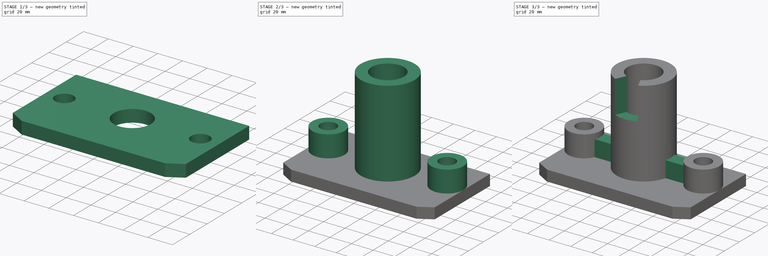
[diagram: build sequence overview — one tinted view per stage of 3, left to right]
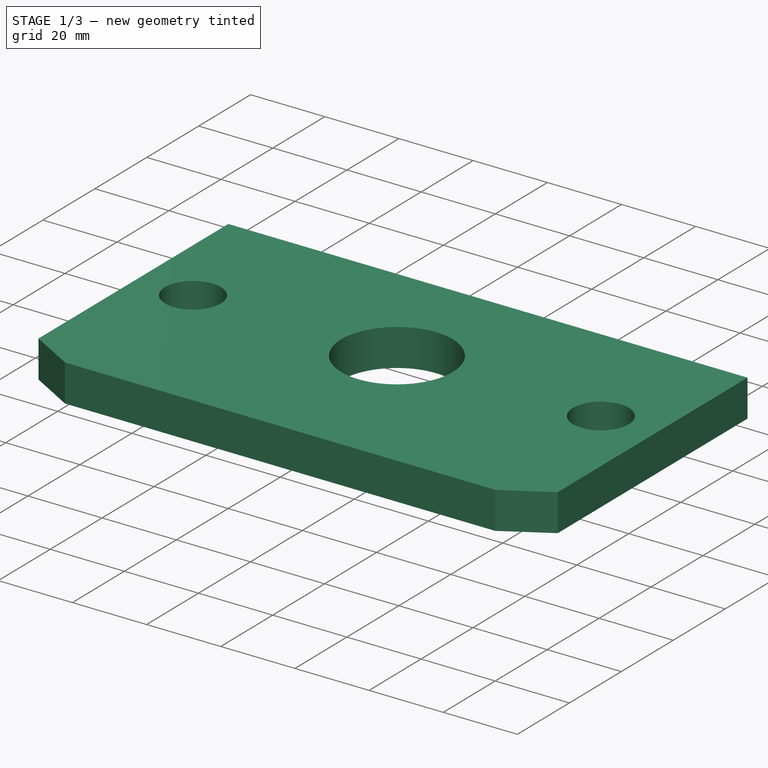
[diagram: stage 1 of 3 — iso view after this stage's code; geometry added in this stage tinted green]
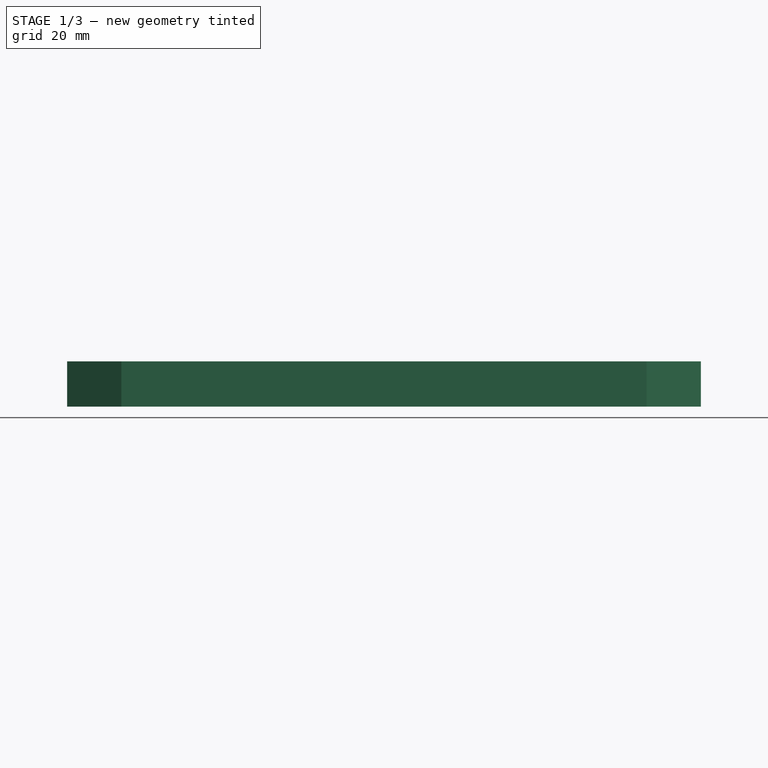
[diagram: stage 1 of 3 — front view after this stage's code; geometry added in this stage tinted green]
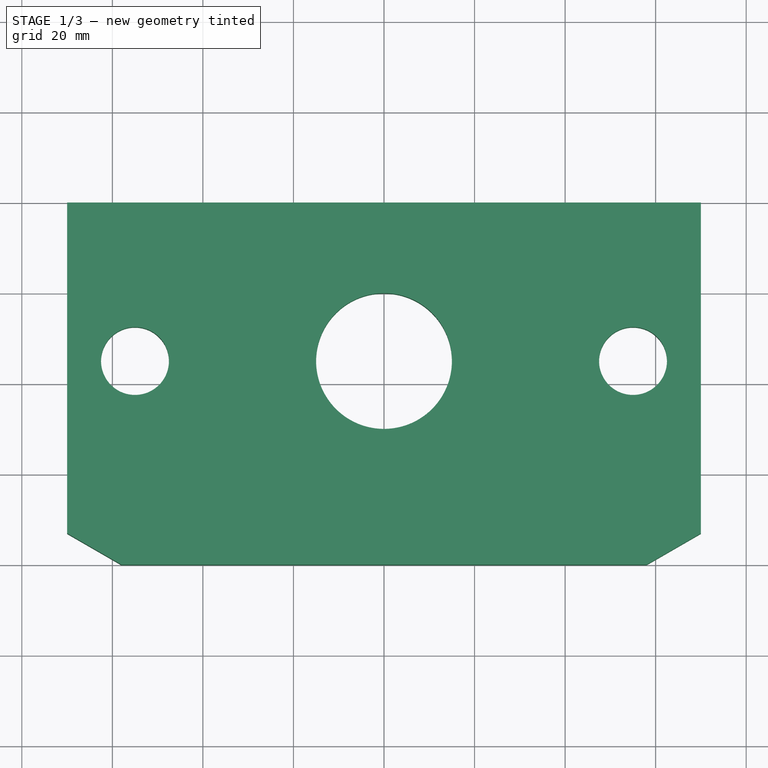
[diagram: stage 1 of 3 — top view after this stage's code; geometry added in this stage tinted green]
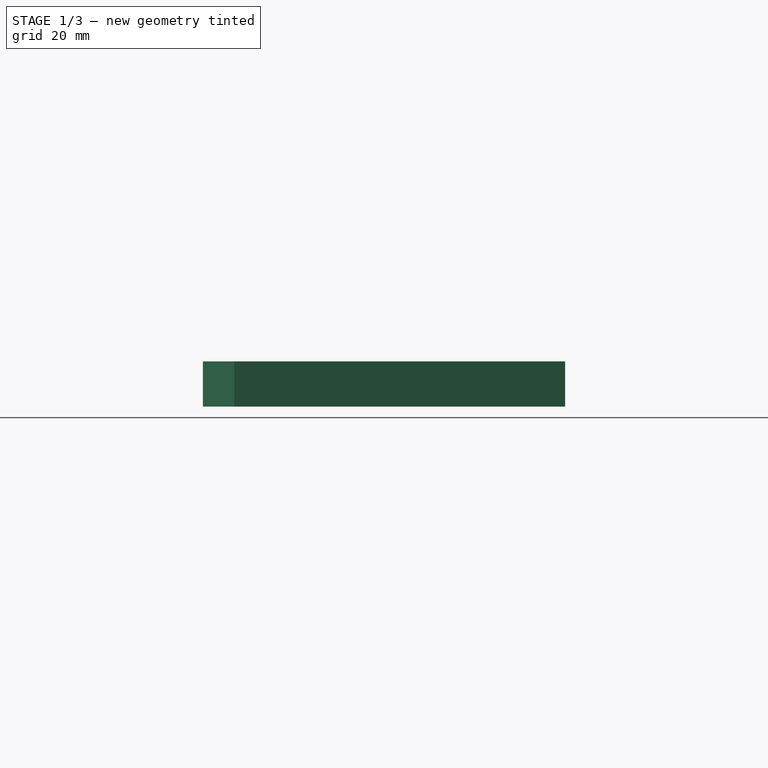
[diagram: stage 1 of 3 — right view after this stage's code; geometry added in this stage tinted green]
FCSTD DOCUMENT  (FreeCAD 1.0R39109 (Git))
Label: 7.2
License: All rights reserved
LicenseURL: https://en.wikipedia.org/wiki/All_rights_reserved
objects: Sketcher::SketchObject×7, PartDesign::Pad×4, PartDesign::Pocket×2, PartDesign::Body×1
note: 33 computed .brp shape members not serialized (recipe doc carries the construction recipe); baked Part::Feature solids carry a one-line shape summary decoded from their .brp

FEATURE [Sketcher::SketchObject] Sketch
  ArcFitTolerance = 1e-06
  AttachmentSupport = -> [XY_Plane]
  FullyConstrained = true
  MakeInternals = false
  MapMode = 5
  sketch-geometry (8):
    g0: LineSegment StartX=-70 StartY=40 StartZ=0 EndX=-70 EndY=-40 EndZ=0
    g1: LineSegment StartX=-70 StartY=-40 StartZ=0 EndX=70 EndY=-40 EndZ=0
    g2: LineSegment StartX=70 StartY=-40 StartZ=0 EndX=70 EndY=40 EndZ=0
    g3: LineSegment StartX=70 StartY=40 StartZ=0 EndX=-70 EndY=40 EndZ=0
    g4: Circle CenterX=-55 CenterY=5 CenterZ=0 NormalX=0 NormalY=0 NormalZ=1 AngleXU=0 Radius=7.5
    g5: Circle CenterX=55 CenterY=5 CenterZ=0 NormalX=0 NormalY=0 NormalZ=1 AngleXU=0 Radius=7.5
    g6: LineSegment [constr] StartX=-70 StartY=5 StartZ=0 EndX=70 EndY=5 EndZ=0
    g7: Circle CenterX=0 CenterY=5 CenterZ=0 NormalX=0 NormalY=0 NormalZ=1 AngleXU=0 Radius=15
  constraints (22):
    c: Coincident(g0,g1)
    c: Coincident(g1,g2)
    c: Coincident(g2,g3)
    c: Coincident(g3,g0)
    c: Vertical(g0)
    c: Vertical(g2)
    c: Horizontal(g1)
    c: Horizontal(g3)
    c: Symmetric(g0,g1,g-1)
    c: DistanceX(g3,g3) = 140
    c: DistanceY(g0,g0) = 80
    c: Diameter(g4) = 15
    c: Equal(g4,g5)
    c: Symmetric(g4,g5,g-2)
    c: PointOnObject(g6,g0)
    c: PointOnObject(g6,g2)
    c: Horizontal(g6)
    c: DistanceY(g6,g0) = 35
    c: Distance(g4,g5) = 110
    c: PointOnObject(g4,g6)
    c: Symmetric(g6,g6,g7)
    c: Diameter(g7) = 30
FEATURE [PartDesign::Pad] Pad
  Direction = (0,0,1)
  Length = 10
  Length2 = 10
  Profile = -> Sketch
  ReferenceAxis = -> Sketch [N_Axis]
  Refine = true
  Suppressed = false
  Type = 0
FEATURE [Sketcher::SketchObject] Sketch001
  ArcFitTolerance = 1e-06
  AttachmentSupport = -> [Pad]
  ExternalGeometry = -> [Pad]
  FullyConstrained = true
  MakeInternals = false
  MapMode = 5
  Placement = pos=(0,0,10) rot=(0,0,1;0rad)
  sketch-geometry (6):
    g0: LineSegment StartX=-70 StartY=-33.0718 StartZ=0 EndX=-58 EndY=-40 EndZ=0
    g1: LineSegment StartX=-58 StartY=-40 StartZ=0 EndX=-70 EndY=-40 EndZ=0
    g2: LineSegment StartX=-70 StartY=-40 StartZ=0 EndX=-70 EndY=-33.0718 EndZ=0
    g3: LineSegment StartX=70 StartY=-33.0718 StartZ=0 EndX=70 EndY=-40 EndZ=0
    g4: LineSegment StartX=70 StartY=-40 StartZ=0 EndX=58 EndY=-40 EndZ=0
    g5: LineSegment StartX=58 StartY=-40 StartZ=0 EndX=70 EndY=-33.0718 EndZ=0
  constraints (16):
    c: Coincident(g0,g1)
    c: Horizontal(g1)
    c: Coincident(g1,g2)
    c: Coincident(g2,g0)
    c: Angle(g0,g1) = 0.523599
    c: DistanceX(g1,g1) = 12
    c: Angle(g1,g2) = 1.5708
    c: Coincident(g1,g-4)
    c: Vertical(g3)
    c: Coincident(g3,g4)
    c: Horizontal(g4)
    c: Coincident(g4,g5)
    c: Coincident(g5,g3)
    c: Angle(g4,g5) = 0.523599
    c: DistanceX(g4,g4) = 12
    c: Coincident(g3,g-4)
FEATURE [PartDesign::Pocket] Pocket
  BaseFeature = -> Pad
  Direction = (0,0,-1)
  Length = 11
  Length2 = 5
  Profile = -> Sketch001
  ReferenceAxis = -> Sketch001 [N_Axis]
  Refine = true
  Suppressed = false
  Type = 0
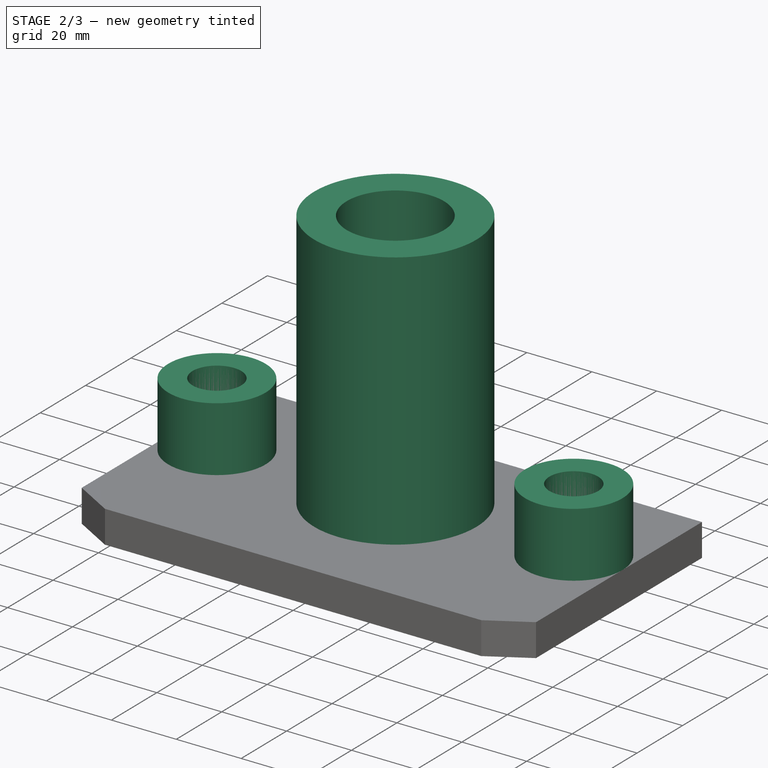
[diagram: stage 2 of 3 — iso view after this stage's code; geometry added in this stage tinted green]
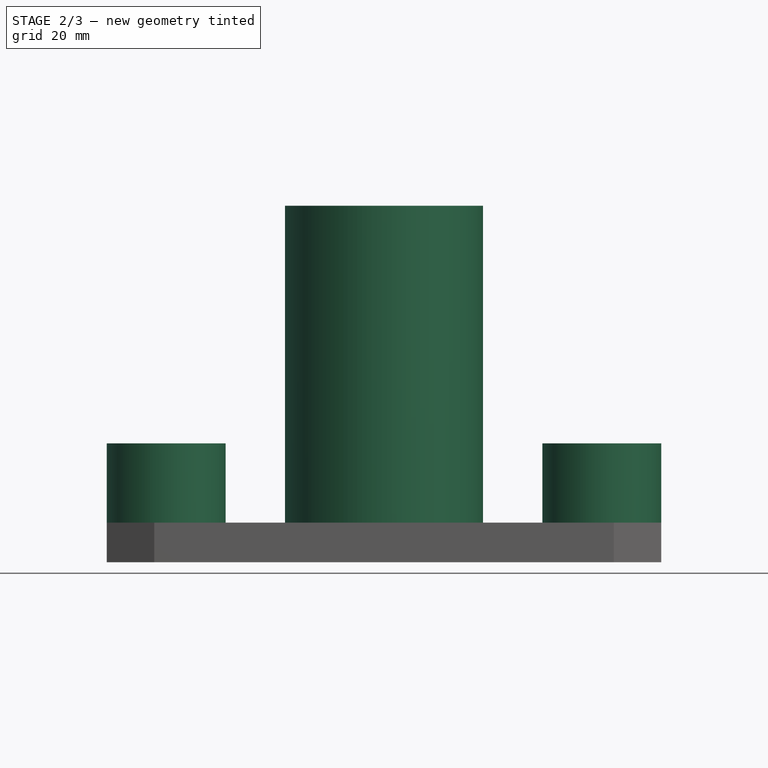
[diagram: stage 2 of 3 — front view after this stage's code; geometry added in this stage tinted green]
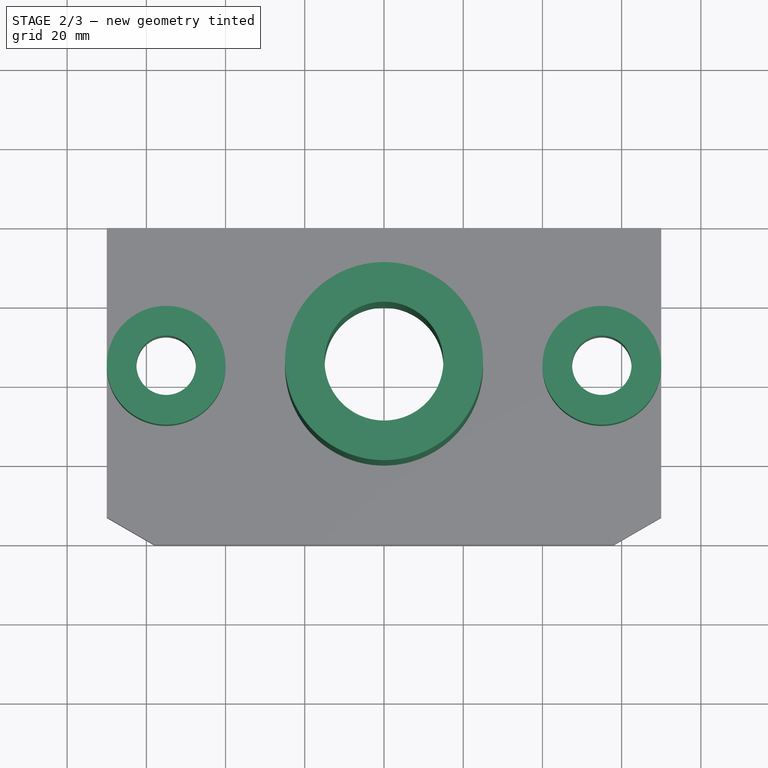
[diagram: stage 2 of 3 — top view after this stage's code; geometry added in this stage tinted green]
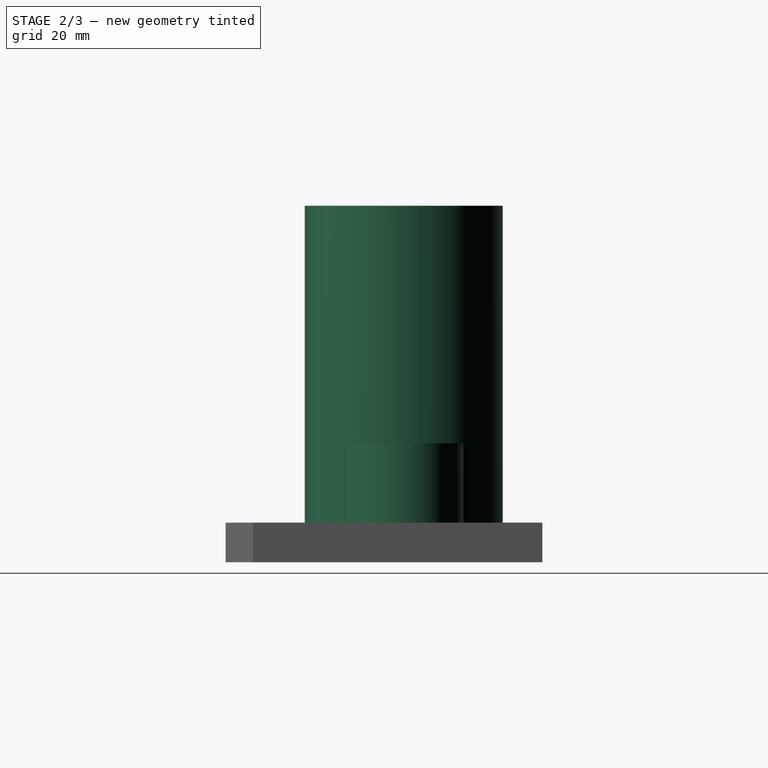
[diagram: stage 2 of 3 — right view after this stage's code; geometry added in this stage tinted green]
FEATURE [Sketcher::SketchObject] Sketch003
  ArcFitTolerance = 1e-06
  FullyConstrained = true
  MakeInternals = false
  MapMode = 5
  Placement = pos=(0,0,25) rot=(0,0,1;0rad)
FEATURE [Sketcher::SketchObject] Sketch004
  ArcFitTolerance = 1e-06
  FullyConstrained = true
  MakeInternals = false
  MapMode = 5
  Placement = pos=(0,0,10) rot=(0,0,1;0rad)
  sketch-geometry (2):
    g0: Circle CenterX=0 CenterY=5 CenterZ=0 NormalX=0 NormalY=0 NormalZ=1 AngleXU=0 Radius=25
    g1: Circle CenterX=0 CenterY=5 CenterZ=0 NormalX=0 NormalY=0 NormalZ=1 AngleXU=0 Radius=15
  constraints (4):
    c: Diameter(g0) = 50
    c: Diameter(g1) = 30
    c: Block(g0)
    c: Block(g1)
FEATURE [PartDesign::Pad] Pad001
  BaseFeature = -> Pocket
  Direction = (0,0,1)
  Length = 80
  Length2 = 10
  Profile = -> Sketch004
  ReferenceAxis = -> Sketch004 [N_Axis]
  Refine = true
  Suppressed = false
  Type = 0
FEATURE [Sketcher::SketchObject] Sketch005
  ArcFitTolerance = 1e-06
  AttachmentSupport = -> [Pad001]
  ExternalGeometry = -> [Pad001]
  FullyConstrained = true
  MakeInternals = false
  MapMode = 5
  Placement = pos=(0,0,10) rot=(0,0,1;0rad)
  sketch-geometry (4):
    g0: Circle CenterX=55 CenterY=5 CenterZ=0 NormalX=0 NormalY=0 NormalZ=1 AngleXU=0 Radius=15
    g1: Circle CenterX=-55 CenterY=5 CenterZ=0 NormalX=0 NormalY=0 NormalZ=1 AngleXU=0 Radius=15
    g2: Circle CenterX=-55 CenterY=5 CenterZ=0 NormalX=0 NormalY=0 NormalZ=1 AngleXU=0 Radius=7.5
    g3: Circle CenterX=55 CenterY=5 CenterZ=0 NormalX=0 NormalY=0 NormalZ=1 AngleXU=0 Radius=7.5
  constraints (10):
    c: Diameter(g0) = 30
    c: Equal(g0,g1)
    c: Symmetric(g0,g1,g-2)
    c: Block(g1)
    c: Block(g0)
    c: Coincident(g2,g1)
    c: Diameter(g3) = 15
    c: Coincident(g3,g0)
    c: Block(g3)
    c: Block(g2)
FEATURE [PartDesign::Pad] Pad002
  BaseFeature = -> Pad001
  Direction = (0,0,1)
  Length = 20
  Length2 = 10
  Profile = -> Sketch005
  ReferenceAxis = -> Sketch005 [N_Axis]
  Refine = true
  Suppressed = false
  Type = 0
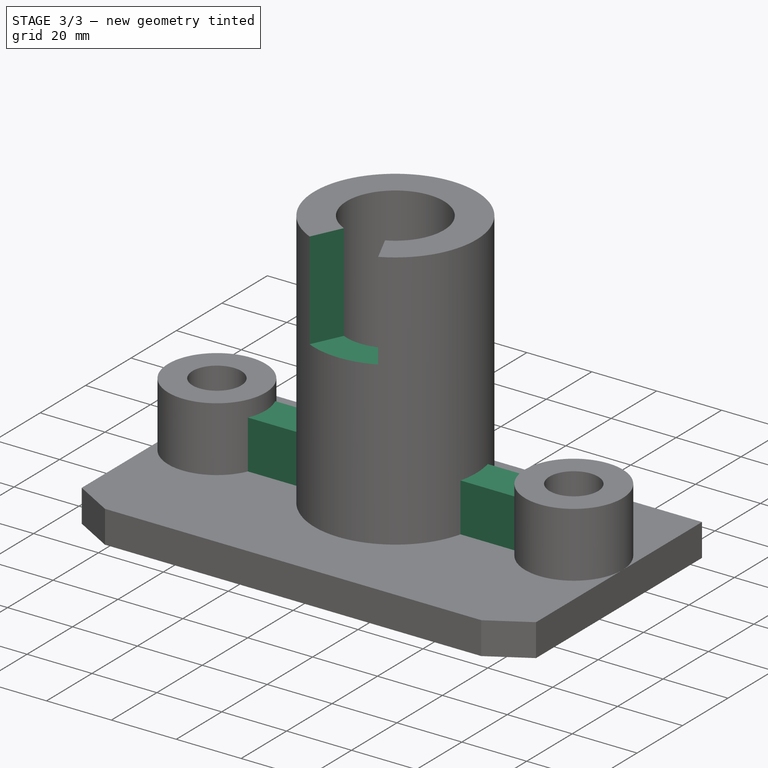
[diagram: stage 3 of 3 — iso view after this stage's code; geometry added in this stage tinted green]
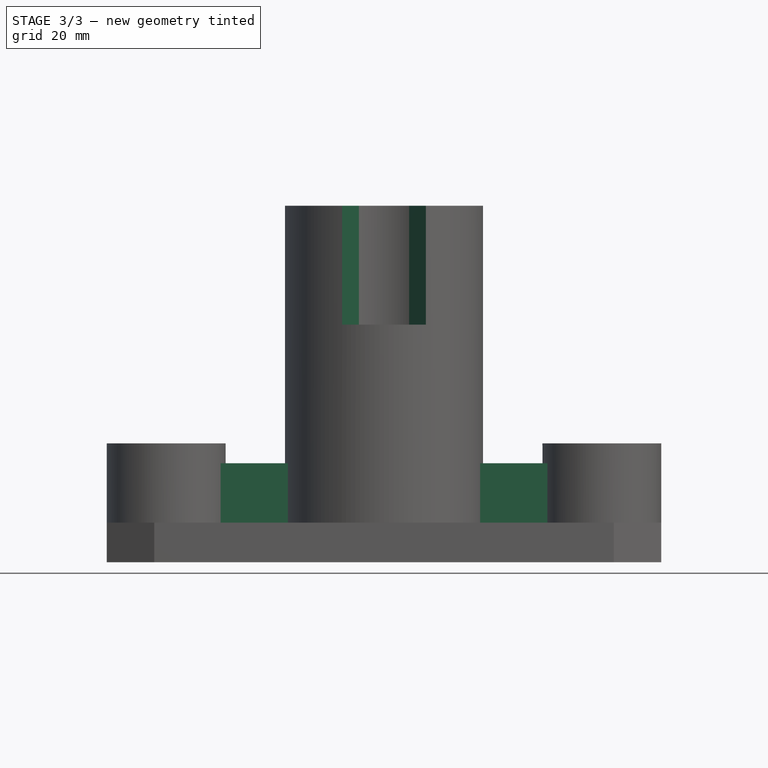
[diagram: stage 3 of 3 — front view after this stage's code; geometry added in this stage tinted green]
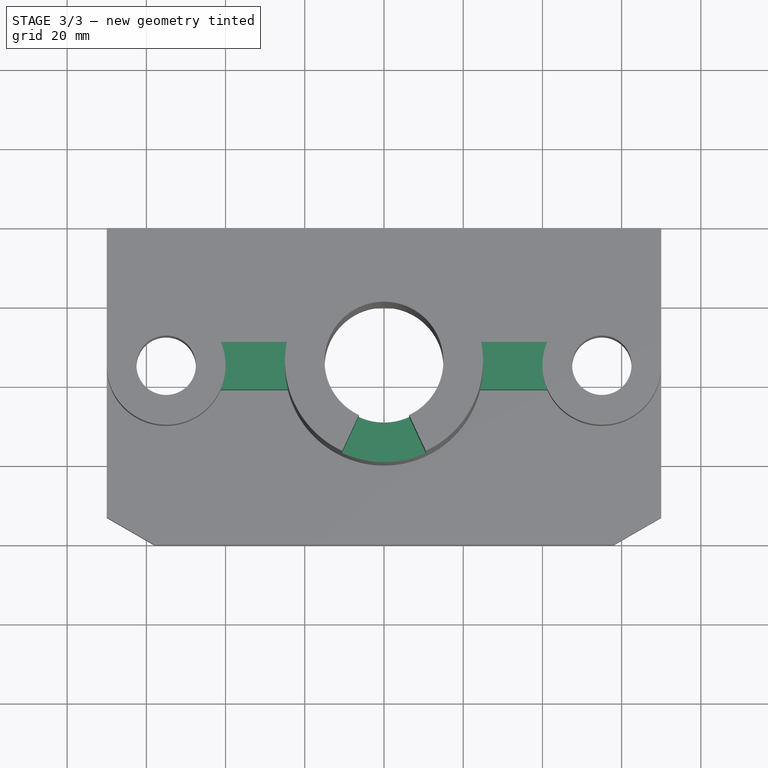
[diagram: stage 3 of 3 — top view after this stage's code; geometry added in this stage tinted green]
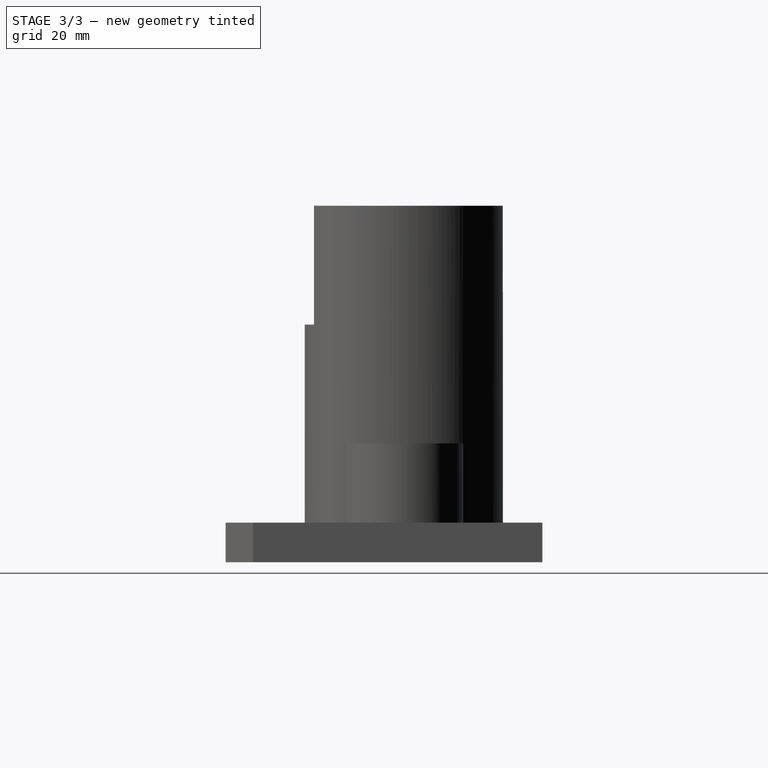
[diagram: stage 3 of 3 — right view after this stage's code; geometry added in this stage tinted green]
FEATURE [Sketcher::SketchObject] Sketch006
  ArcFitTolerance = 1e-06
  AttachmentSupport = -> [Pad002]
  ExternalGeometry = -> [Pad002]
  FullyConstrained = true
  MakeInternals = false
  MapMode = 5
  Placement = pos=(0,0,10) rot=(0,0,1;0rad)
  sketch-geometry (8):
    g0: LineSegment StartX=-46.0148 StartY=11 StartZ=0 EndX=-46.0148 EndY=-1 EndZ=0
    g1: LineSegment StartX=-46.0148 StartY=-1 StartZ=0 EndX=-20.0148 EndY=-1 EndZ=0
    g2: LineSegment StartX=-20.0148 StartY=-1 StartZ=0 EndX=-20.0148 EndY=11 EndZ=0
    g3: LineSegment StartX=-20.0148 StartY=11 StartZ=0 EndX=-46.0148 EndY=11 EndZ=0
    g4: LineSegment StartX=46.0148 StartY=11 StartZ=0 EndX=46.0148 EndY=-1 EndZ=0
    g5: LineSegment StartX=46.0148 StartY=-1 StartZ=0 EndX=20.0148 EndY=-1 EndZ=0
    g6: LineSegment StartX=20.0148 StartY=-1 StartZ=0 EndX=20.0148 EndY=11 EndZ=0
    g7: LineSegment StartX=20.0148 StartY=11 StartZ=0 EndX=46.0148 EndY=11 EndZ=0
  constraints (22):
    c: Coincident(g0,g1)
    c: Coincident(g1,g2)
    c: Coincident(g2,g3)
    c: Coincident(g3,g0)
    c: Vertical(g0)
    c: Vertical(g2)
    c: Horizontal(g1)
    c: Horizontal(g3)
    c: Distance(g0,g2) = 26
    c: Distance(g1,g3) = 12
    c: Block(g1)
    c: Coincident(g4,g5)
    c: Coincident(g5,g6)
    c: Coincident(g6,g7)
    c: Coincident(g7,g4)
    c: Vertical(g4)
    c: Vertical(g6)
    c: Horizontal(g5)
    c: Horizontal(g7)
    c: Distance(g4,g6) = 26
    c: Distance(g5,g7) = 12
    c: Block(g5)
FEATURE [PartDesign::Pad] Pad003
  BaseFeature = -> Pad002
  Direction = (0,0,1)
  Length = 15
  Length2 = 10
  Profile = -> Sketch006
  ReferenceAxis = -> Sketch006 [N_Axis]
  Refine = true
  Suppressed = false
  Type = 0
FEATURE [Sketcher::SketchObject] Sketch007
  ArcFitTolerance = 1e-06
  AttachmentSupport = -> [Pad003]
  ExternalGeometry = -> [Pad003]
  FullyConstrained = true
  MakeInternals = false
  MapMode = 5
  Placement = pos=(0,0,90) rot=(0,0,1;0rad)
  sketch-geometry (3):
    g0: ArcOfCircle CenterX=1e-16 CenterY=5 CenterZ=0 NormalX=0 NormalY=0 NormalZ=1 AngleXU=0 Radius=25 StartAngle=4.27606 EndAngle=5.14872
    g1: LineSegment StartX=1e-16 StartY=5 StartZ=0 EndX=-10.5654 EndY=-17.6577 EndZ=0
    g2: LineSegment StartX=10.5655 StartY=-17.6577 StartZ=0 EndX=1e-16 EndY=5 EndZ=0
  constraints (7):
    c: Coincident(g1,g0)
    c: Coincident(g1,g0)
    c: Coincident(g2,g0)
    c: Coincident(g2,g0)
    c: Block(g1)
    c: Block(g2)
    c: Block(g0)
FEATURE [PartDesign::Pocket] Pocket001
  BaseFeature = -> Pad003
  Direction = (0,0,-1)
  Length = 30
  Length2 = 5
  Profile = -> Sketch007
  ReferenceAxis = -> Sketch007 [N_Axis]
  Refine = true
  Suppressed = false
  Type = 0
FEATURE [PartDesign::Body] Body  label="Тело"
  AllowCompound = false
  Group = -> [Sketch,Pad,Sketch001,Pocket,Sketch003,Sketch004,Pad001,Sketch005,Pad002,Sketch006,Pad003,Sketch007,Pocket001]
  Origin = -> Origin
  Tip = -> Pocket001
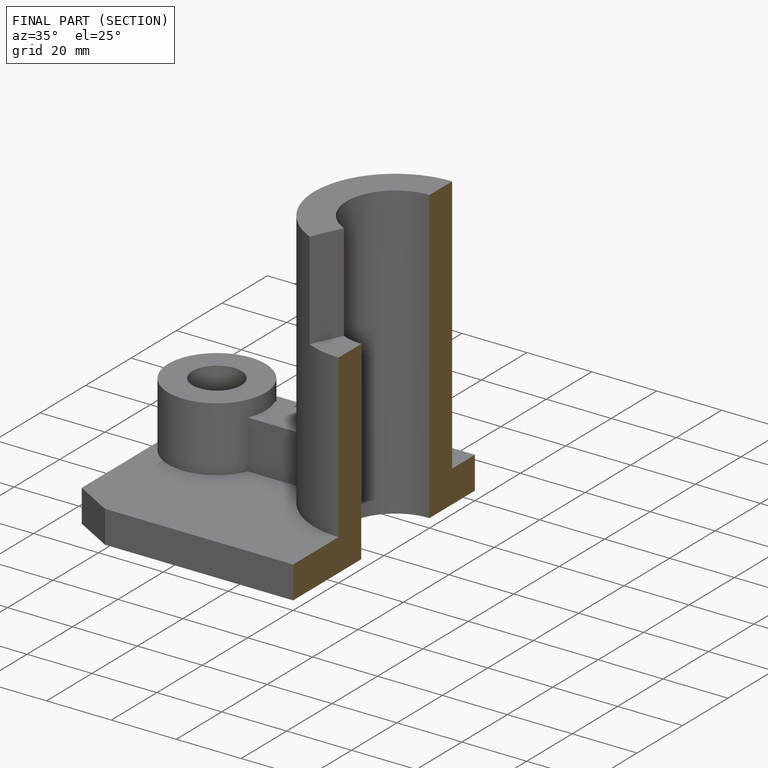
[diagram: finished part — half-section view (interior)]
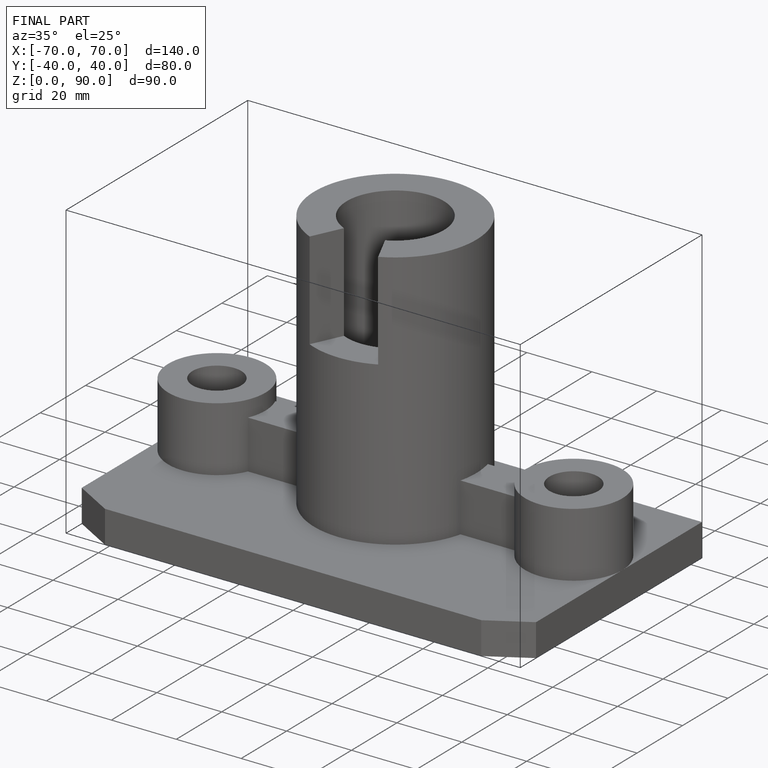
[diagram: finished part — iso view with bounding-box wireframe]
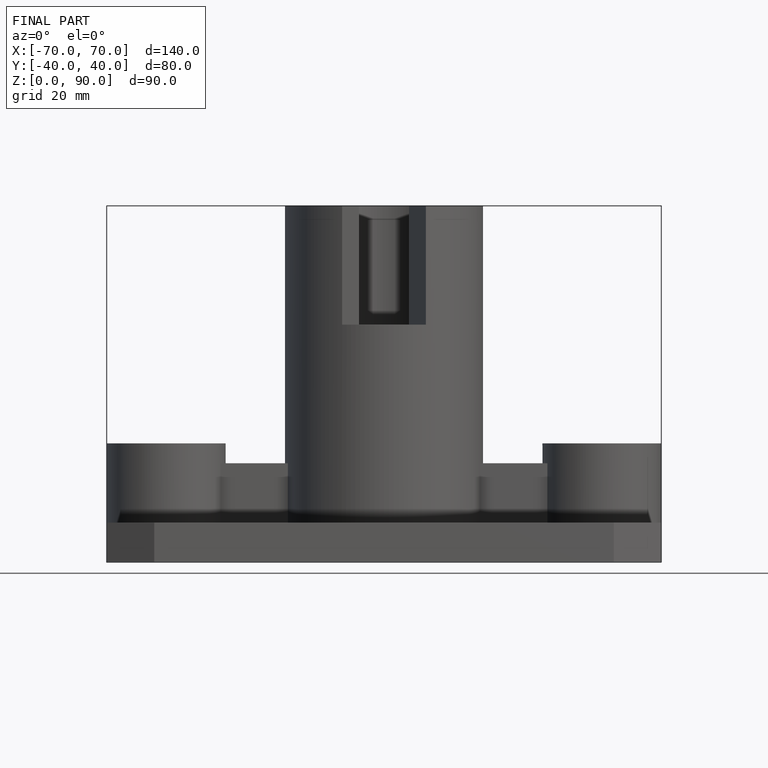
[diagram: finished part — front view with bounding-box wireframe]
